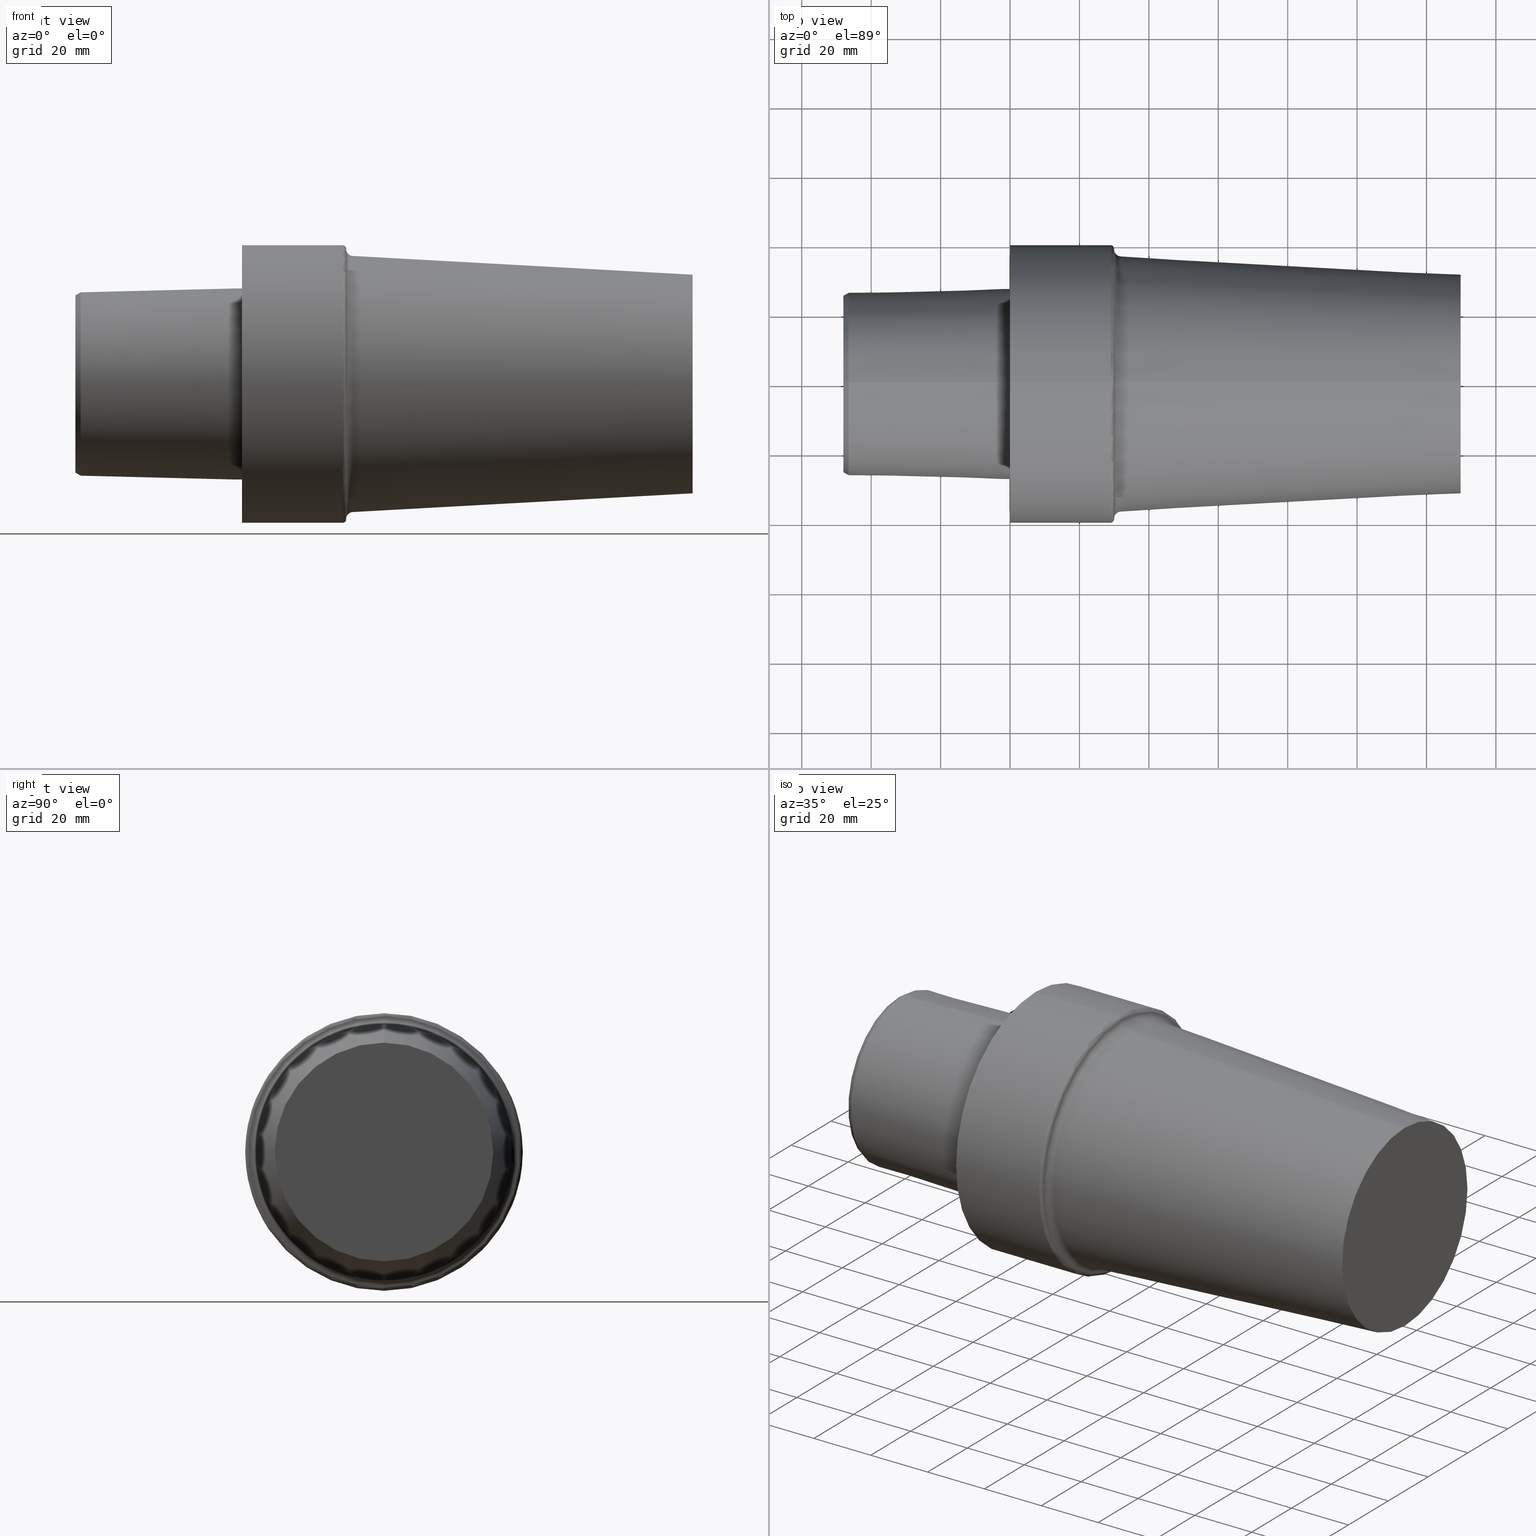
[diagram: canonical four-view strip — front | top / right | iso, engineering-drawing reading convention]
A machine part, canonical four-view strip (front | top / right | iso — engineering-drawing reading convention). The complete STEP part file that produces these views, byte-faithful:
ISO-10303-21;
HEADER;
FILE_DESCRIPTION (( 'STEP AP203' ),
    '1' );
FILE_NAME ('C8-F63-130.stp',
    '2022-03-11T15:36:04',
    ( '' ),
    ( '' ),
    'SwSTEP 2.0',
    'SolidWorks 2021',
    '' );
FILE_SCHEMA (( 'CONFIG_CONTROL_DESIGN' ));
ENDSEC;

DATA;
#1 = ORIENTED_EDGE ( 'NONE', *, *, #59, .F. ) ;
#2 = CARTESIAN_POINT ( 'NONE',  ( 31.88996590016365218, 0.000000000000000000, 0.000000000000000000 ) ) ;
#3 = ADVANCED_FACE ( 'NONE', ( #509 ), #198, .F. ) ;
#4 = ORIENTED_EDGE ( 'NONE', *, *, #321, .T. ) ;
#5 = ADVANCED_FACE ( 'NONE', ( #13 ), #469, .T. ) ;
#6 = CIRCLE ( 'NONE', #113, 0.9999999989799973621 ) ;
#7 = CARTESIAN_POINT ( 'NONE',  ( -46.49999994987858543, 0.000000000000000000, 0.000000000000000000 ) ) ;
#8 = VERTEX_POINT ( 'NONE', #512 ) ;
#9 = CIRCLE ( 'NONE', #496, 26.41260027772084129 ) ;
#10 = DIRECTION ( 'NONE',  ( -0.9984854159579920063, 0.000000000000000000, 0.05501703480918899991 ) ) ;
#11 = ORIENTED_EDGE ( 'NONE', *, *, #396, .T. ) ;
#12 = EDGE_CURVE ( 'NONE', #8, #216, #371, .T. ) ;
#13 = FACE_OUTER_BOUND ( 'NONE', #133, .T. ) ;
#14 = CIRCLE ( 'NONE', #319, 36.89586191702791496 ) ;
#15 = CARTESIAN_POINT ( 'NONE',  ( -46.49999994987858543, 0.000000000000000000, -26.41260027772084129 ) ) ;
#16 = APPROVAL ( #538, 'UNSPECIFIED' ) ;
#17 = ORIENTED_EDGE ( 'NONE', *, *, #504, .F. ) ;
#18 = AXIS2_PLACEMENT_3D ( 'NONE', #446, #26, #482 ) ;
#19 = CARTESIAN_POINT ( 'NONE',  ( -47.99999995507708661, 0.000000000000000000, 0.000000000000000000 ) ) ;
#20 = DIRECTION ( 'NONE',  ( -1.000000000000000000, 0.000000000000000000, 0.000000000000000000 ) ) ;
#21 = AXIS2_PLACEMENT_3D ( 'NONE', #228, #99, #391 ) ;
#22 = DIRECTION ( 'NONE',  ( 0.000000000000000000, 0.000000000000000000, -1.000000000000000000 ) ) ;
#23 = LINE ( 'NONE', #285, #27 ) ;
#24 = CC_DESIGN_DATE_AND_TIME_ASSIGNMENT ( #170, #122, ( #413 ) ) ;
#25 = CARTESIAN_POINT ( 'NONE',  ( 28.99999997311141797, 4.897668707065322260E-15, -39.99249996386929951 ) ) ;
#26 = DIRECTION ( 'NONE',  ( -1.000000000000000000, 0.000000000000000000, 0.000000000000000000 ) ) ;
#27 = VECTOR ( 'NONE', #201, 1000.000000000000000 ) ;
#28 = TOROIDAL_SURFACE ( 'NONE', #58, 38.99249996488934045, 0.9999999989799999156 ) ;
#29 = ADVANCED_FACE ( 'NONE', ( #271 ), #316, .F. ) ;
#30 = DIRECTION ( 'NONE',  ( -1.000000000000000000, 0.000000000000000000, 0.000000000000000000 ) ) ;
#31 = FACE_OUTER_BOUND ( 'NONE', #505, .T. ) ;
#32 = ORIENTED_EDGE ( 'NONE', *, *, #377, .T. ) ;
#33 = CARTESIAN_POINT ( 'NONE',  ( 129.8176255202773746, 0.000000000000000000, 0.000000000000000000 ) ) ;
#34 = DIRECTION ( 'NONE',  ( 0.000000000000000000, 1.000000000000000000, 0.000000000000000000 ) ) ;
#35 = SHAPE_DEFINITION_REPRESENTATION ( #266, #115 ) ;
#36 = DIRECTION ( 'NONE',  ( -1.000000000000000000, 0.000000000000000000, 0.000000000000000000 ) ) ;
#37 = EDGE_CURVE ( 'NONE', #297, #265, #260, .T. ) ;
#38 = COORDINATED_UNIVERSAL_TIME_OFFSET ( 6, 0, .BEHIND. ) ;
#39 = FACE_OUTER_BOUND ( 'NONE', #176, .T. ) ;
#40 = ORIENTED_EDGE ( 'NONE', *, *, #185, .T. ) ;
#41 = PERSON_AND_ORGANIZATION ( #459, #428 ) ;
#42 = FACE_OUTER_BOUND ( 'NONE', #382, .T. ) ;
#43 = ORIENTED_EDGE ( 'NONE', *, *, #12, .T. ) ;
#44 = APPROVAL_ROLE ( '' ) ;
#45 = VERTEX_POINT ( 'NONE', #443 ) ;
#46 = CONICAL_SURFACE ( 'NONE', #181, 26.41260027772084129, 0.5235987755982992597 ) ;
#47 = PERSON_AND_ORGANIZATION_ROLE ( 'creator' ) ;
#48 = CIRCLE ( 'NONE', #18, 38.89283274499099718 ) ;
#49 = DIRECTION ( 'NONE',  ( -1.000000000000000000, 0.000000000000000000, 0.000000000000000000 ) ) ;
#50 = ORIENTED_EDGE ( 'NONE', *, *, #98, .T. ) ;
#51 = EDGE_CURVE ( 'NONE', #159, #374, #318, .T. ) ;
#52 = ADVANCED_FACE ( 'NONE', ( #478 ), #118, .T. ) ;
#53 = EDGE_LOOP ( 'NONE', ( #365, #416, #497, #102 ) ) ;
#54 = CARTESIAN_POINT ( 'NONE',  ( 29.99999997209141611, 4.836436367170416693E-15, -38.99249996488934045 ) ) ;
#55 = ORIENTED_EDGE ( 'NONE', *, *, #377, .F. ) ;
#56 = AXIS2_PLACEMENT_3D ( 'NONE', #207, #330, #525 ) ;
#57 = ORIENTED_EDGE ( 'NONE', *, *, #123, .F. ) ;
#58 = AXIS2_PLACEMENT_3D ( 'NONE', #352, #209, #357 ) ;
#59 = EDGE_CURVE ( 'NONE', #265, #297, #510, .T. ) ;
#60 = ORIENTED_EDGE ( 'NONE', *, *, #476, .T. ) ;
#61 = ADVANCED_FACE ( 'NONE', ( #280 ), #74, .T. ) ;
#62 = DIRECTION ( 'NONE',  ( 1.000000000000000000, 0.000000000000000000, 0.000000000000000000 ) ) ;
#63 = DIRECTION ( 'NONE',  ( 0.000000000000000000, 0.000000000000000000, 1.000000000000000000 ) ) ;
#64 = AXIS2_PLACEMENT_3D ( 'NONE', #501, #85, #367 ) ;
#65 = DIRECTION ( 'NONE',  ( -1.000000000000000000, 0.000000000000000000, 0.000000000000000000 ) ) ;
#66 = EDGE_CURVE ( 'NONE', #263, #8, #23, .T. ) ;
#67 = DIRECTION ( 'NONE',  ( 0.000000000000000000, 0.000000000000000000, 1.000000000000000000 ) ) ;
#68 = SECURITY_CLASSIFICATION ( '', '', #290 ) ;
#69 = DIRECTION ( 'NONE',  ( -1.000000000000000000, 0.000000000000000000, 0.000000000000000000 ) ) ;
#70 = DIRECTION ( 'NONE',  ( -1.000000000000000000, 0.000000000000000000, 0.000000000000000000 ) ) ;
#71 = DIRECTION ( 'NONE',  ( 0.000000000000000000, 0.000000000000000000, 1.000000000000000000 ) ) ;
#72 = LOCAL_TIME ( 9, 36, 4.000000000000000000, #255 ) ;
#73 =( LENGTH_UNIT ( ) NAMED_UNIT ( * ) SI_UNIT ( .MILLI., .METRE. ) );
#74 = CYLINDRICAL_SURFACE ( 'NONE', #296, 39.99249996386929951 ) ;
#75 = ORIENTED_EDGE ( 'NONE', *, *, #461, .F. ) ;
#76 = PERSON_AND_ORGANIZATION ( #459, #428 ) ;
#77 = ADVANCED_FACE ( 'NONE', ( #196, #517 ), #114, .F. ) ;
#78 = DIRECTION ( 'NONE',  ( -1.000000000000000000, 0.000000000000000000, 0.000000000000000000 ) ) ;
#79 = DIRECTION ( 'NONE',  ( 1.000000000000000000, 0.000000000000000000, 0.000000000000000000 ) ) ;
#80 = VECTOR ( 'NONE', #144, 1000.000000000000000 ) ;
#81 = ORIENTED_EDGE ( 'NONE', *, *, #91, .T. ) ;
#82 = CONICAL_SURFACE ( 'NONE', #162, 27.52650806658465399, 0.02499311489546479637 ) ;
#83 = PERSON_AND_ORGANIZATION ( #459, #428 ) ;
#84 = CIRCLE ( 'NONE', #323, 25.54657487093501445 ) ;
#85 = DIRECTION ( 'NONE',  ( 0.000000000000000000, 1.000000000000000000, 1.224646799147353947E-16 ) ) ;
#86 = ORIENTED_EDGE ( 'NONE', *, *, #213, .F. ) ;
#87 = PERSON_AND_ORGANIZATION ( #459, #428 ) ;
#88 = ORIENTED_EDGE ( 'NONE', *, *, #199, .T. ) ;
#89 = CALENDAR_DATE ( 2022, 11, 3 ) ;
#90 = ORIENTED_EDGE ( 'NONE', *, *, #395, .F. ) ;
#91 = EDGE_CURVE ( 'NONE', #281, #169, #151, .T. ) ;
#92 = CIRCLE ( 'NONE', #64, 0.9999999989799973621 ) ;
#93 = ORIENTED_EDGE ( 'NONE', *, *, #59, .T. ) ;
#94 = DIRECTION ( 'NONE',  ( -1.000000000000000000, 0.000000000000000000, 0.000000000000000000 ) ) ;
#95 = ORIENTED_EDGE ( 'NONE', *, *, #261, .T. ) ;
#96 = AXIS2_PLACEMENT_3D ( 'NONE', #189, #425, #194 ) ;
#97 = FACE_OUTER_BOUND ( 'NONE', #455, .T. ) ;
#98 = EDGE_CURVE ( 'NONE', #159, #222, #284, .T. ) ;
#99 = DIRECTION ( 'NONE',  ( -1.000000000000000000, 0.000000000000000000, 0.000000000000000000 ) ) ;
#100 = EDGE_CURVE ( 'NONE', #378, #412, #452, .T. ) ;
#101 = CARTESIAN_POINT ( 'NONE',  ( 2.691416640612785863E-09, 0.000000000000000000, 0.000000000000000000 ) ) ;
#102 = ORIENTED_EDGE ( 'NONE', *, *, #504, .T. ) ;
#103 = DIRECTION ( 'NONE',  ( 0.000000000000000000, 0.000000000000000000, 1.000000000000000000 ) ) ;
#104 = ADVANCED_FACE ( 'NONE', ( #240, #31 ), #117, .F. ) ;
#105 = DIRECTION ( 'NONE',  ( 0.000000000000000000, 0.000000000000000000, 1.000000000000000000 ) ) ;
#106 = AXIS2_PLACEMENT_3D ( 'NONE', #481, #202, #63 ) ;
#107 = DIRECTION ( 'NONE',  ( 0.000000000000000000, 0.000000000000000000, 1.000000000000000000 ) ) ;
#108 = DIRECTION ( 'NONE',  ( 0.000000000000000000, 0.000000000000000000, 1.000000000000000000 ) ) ;
#109 = FACE_OUTER_BOUND ( 'NONE', #333, .T. ) ;
#110 = DIRECTION ( 'NONE',  ( 0.8660254037844387076, 0.000000000000000000, -0.4999999999999998890 ) ) ;
#111 = ORIENTED_EDGE ( 'NONE', *, *, #136, .T. ) ;
#112 = FACE_OUTER_BOUND ( 'NONE', #286, .T. ) ;
#113 = AXIS2_PLACEMENT_3D ( 'NONE', #343, #188, #511 ) ;
#114 = PLANE ( 'NONE',  #225 ) ;
#115 = ADVANCED_BREP_SHAPE_REPRESENTATION ( 'C8-F63-130', ( #450, #298 ), #313 ) ;
#116 = LOCAL_TIME ( 9, 36, 4.000000000000000000, #38 ) ;
#117 = PLANE ( 'NONE',  #172 ) ;
#118 = CONICAL_SURFACE ( 'NONE', #467, 31.49999997253168615, 0.05504482762205797908 ) ;
#119 = PERSON_AND_ORGANIZATION_ROLE ( 'design_owner' ) ;
#120 = DIRECTION ( 'NONE',  ( -1.000000000000000000, 0.000000000000000000, 0.000000000000000000 ) ) ;
#121 = EDGE_LOOP ( 'NONE', ( #475, #494, #32, #1 ) ) ;
#122 = DATE_TIME_ROLE ( 'creation_date' ) ;
#123 = EDGE_CURVE ( 'NONE', #222, #346, #161, .T. ) ;
#124 = ORIENTED_EDGE ( 'NONE', *, *, #51, .T. ) ;
#125 = CIRCLE ( 'NONE', #441, 26.41260027772084129 ) ;
#126 = APPROVAL_ROLE ( '' ) ;
#127 = CIRCLE ( 'NONE', #226, 38.89283274499099718 ) ;
#128 = CARTESIAN_POINT ( 'NONE',  ( 31.88996590016365218, 0.000000000000000000, 36.89586191702791496 ) ) ;
#129 = ORIENTED_EDGE ( 'NONE', *, *, #37, .F. ) ;
#130 = CARTESIAN_POINT ( 'NONE',  ( -1.940694415329066391, 0.000000000000000000, 27.52650806658465399 ) ) ;
#131 = EDGE_LOOP ( 'NONE', ( #340, #81, #139, #444 ) ) ;
#132 = DIRECTION ( 'NONE',  ( 0.000000000000000000, 0.000000000000000000, -1.000000000000000000 ) ) ;
#133 = EDGE_LOOP ( 'NONE', ( #221, #223, #336, #419 ) ) ;
#134 = CIRCLE ( 'NONE', #246, 36.89586191702791496 ) ;
#135 = VERTEX_POINT ( 'NONE', #400 ) ;
#136 = EDGE_CURVE ( 'NONE', #302, #281, #48, .T. ) ;
#137 = PRODUCT ( 'C8-F63-130', 'C8-F63-130', '', ( #368 ) ) ;
#138 = CARTESIAN_POINT ( 'NONE',  ( -47.99999995507708661, 0.000000000000000000, 39.99249996386929951 ) ) ;
#139 = ORIENTED_EDGE ( 'NONE', *, *, #372, .T. ) ;
#140 = AXIS2_PLACEMENT_3D ( 'NONE', #410, #215, #369 ) ;
#141 = AXIS2_PLACEMENT_3D ( 'NONE', #210, #327, #152 ) ;
#142 = DIRECTION ( 'NONE',  ( -1.000000000000000000, 0.000000000000000000, 0.000000000000000000 ) ) ;
#143 = CARTESIAN_POINT ( 'NONE',  ( -1.940694415329066391, 0.000000000000000000, 0.000000000000000000 ) ) ;
#144 = DIRECTION ( 'NONE',  ( -1.000000000000000000, 0.000000000000000000, 0.000000000000000000 ) ) ;
#145 = EDGE_LOOP ( 'NONE', ( #229, #205, #60, #306 ) ) ;
#146 = LOCAL_TIME ( 9, 36, 4.000000000000000000, #493 ) ;
#147 = CYLINDRICAL_SURFACE ( 'NONE', #153, 27.52650806658465399 ) ;
#148 = CARTESIAN_POINT ( 'NONE',  ( 2.691416640612785863E-09, 0.000000000000000000, 0.000000000000000000 ) ) ;
#149 = AXIS2_PLACEMENT_3D ( 'NONE', #236, #70, #103 ) ;
#150 = DIRECTION ( 'NONE',  ( -1.000000000000000000, 0.000000000000000000, 0.000000000000000000 ) ) ;
#151 = CIRCLE ( 'NONE', #56, 1.999999997960001608 ) ;
#152 = DIRECTION ( 'NONE',  ( 0.000000000000000000, 0.000000000000000000, 1.000000000000000000 ) ) ;
#153 = AXIS2_PLACEMENT_3D ( 'NONE', #154, #150, #200 ) ;
#154 = CARTESIAN_POINT ( 'NONE',  ( -47.99999995507708661, 0.000000000000000000, 0.000000000000000000 ) ) ;
#155 = DIRECTION ( 'NONE',  ( 1.000000000000000000, 0.000000000000000000, 0.000000000000000000 ) ) ;
#156 = DIRECTION ( 'NONE',  ( -1.000000000000000000, 0.000000000000000000, 0.000000000000000000 ) ) ;
#157 = CARTESIAN_POINT ( 'NONE',  ( 31.99999997005141594, 0.000000000000000000, 0.000000000000000000 ) ) ;
#158 = EDGE_CURVE ( 'NONE', #430, #265, #204, .T. ) ;
#159 = VERTEX_POINT ( 'NONE', #438 ) ;
#160 = CARTESIAN_POINT ( 'NONE',  ( 29.99999997209141611, 0.000000000000000000, 38.99249996488934045 ) ) ;
#161 = LINE ( 'NONE', #325, #257 ) ;
#162 = AXIS2_PLACEMENT_3D ( 'NONE', #244, #534, #132 ) ;
#163 = DIRECTION ( 'NONE',  ( -1.000000000000000000, 0.000000000000000000, 0.000000000000000000 ) ) ;
#164 = ORIENTED_EDGE ( 'NONE', *, *, #100, .T. ) ;
#165 = ADVANCED_FACE ( 'NONE', ( #354 ), #471, .F. ) ;
#166 = AXIS2_PLACEMENT_3D ( 'NONE', #148, #435, #71 ) ;
#167 = APPROVAL_ROLE ( '' ) ;
#168 = DIRECTION ( 'NONE',  ( 0.000000000000000000, 0.000000000000000000, -1.000000000000000000 ) ) ;
#169 = VERTEX_POINT ( 'NONE', #288 ) ;
#170 = DATE_AND_TIME ( #334, #379 ) ;
#171 = EDGE_LOOP ( 'NONE', ( #460, #305 ) ) ;
#172 = AXIS2_PLACEMENT_3D ( 'NONE', #437, #69, #366 ) ;
#173 = PERSON_AND_ORGANIZATION ( #459, #428 ) ;
#174 = ADVANCED_FACE ( 'NONE', ( #292 ), #348, .T. ) ;
#175 = CARTESIAN_POINT ( 'NONE',  ( -1.940694415329066391, 0.000000000000000000, 0.000000000000000000 ) ) ;
#176 = EDGE_LOOP ( 'NONE', ( #269, #88, #86, #218 ) ) ;
#177 = DIRECTION ( 'NONE',  ( 0.000000000000000000, 0.000000000000000000, 1.000000000000000000 ) ) ;
#178 = EDGE_LOOP ( 'NONE', ( #384, #259 ) ) ;
#179 = EDGE_CURVE ( 'NONE', #412, #378, #418, .T. ) ;
#180 = DIRECTION ( 'NONE',  ( 0.000000000000000000, 0.000000000000000000, 1.000000000000000000 ) ) ;
#181 = AXIS2_PLACEMENT_3D ( 'NONE', #7, #62, #389 ) ;
#182 = CARTESIAN_POINT ( 'NONE',  ( -46.49999994987858543, 3.302817819135798828E-15, 26.41260027772084129 ) ) ;
#183 = VECTOR ( 'NONE', #479, 1000.000000000000114 ) ;
#184 = ORIENTED_EDGE ( 'NONE', *, *, #396, .F. ) ;
#185 = EDGE_CURVE ( 'NONE', #374, #346, #125, .T. ) ;
#186 = CARTESIAN_POINT ( 'NONE',  ( -47.99999995507708661, 0.000000000000000000, 0.000000000000000000 ) ) ;
#187 = ADVANCED_FACE ( 'NONE', ( #42 ), #82, .T. ) ;
#188 = DIRECTION ( 'NONE',  ( 0.000000000000000000, -1.000000000000000000, 0.000000000000000000 ) ) ;
#189 = CARTESIAN_POINT ( 'NONE',  ( -47.99999995507708661, 0.000000000000000000, 0.000000000000000000 ) ) ;
#190 = VECTOR ( 'NONE', #10, 1000.000000000000227 ) ;
#191 = AXIS2_PLACEMENT_3D ( 'NONE', #295, #36, #341 ) ;
#192 = CARTESIAN_POINT ( 'NONE',  ( 29.99999997209141611, 0.000000000000000000, 38.89283274593847750 ) ) ;
#193 = ADVANCED_FACE ( 'NONE', ( #489 ), #230, .T. ) ;
#194 = DIRECTION ( 'NONE',  ( 0.000000000000000000, 0.000000000000000000, 1.000000000000000000 ) ) ;
#195 = DIRECTION ( 'NONE',  ( -1.000000000000000000, 0.000000000000000000, 0.000000000000000000 ) ) ;
#196 = FACE_BOUND ( 'NONE', #178, .T. ) ;
#197 = DESIGN_CONTEXT ( 'detailed design', #242, 'design' ) ;
#198 = TOROIDAL_SURFACE ( 'NONE', #21, 38.89283274688592229, 1.999999997959999831 ) ;
#199 = EDGE_CURVE ( 'NONE', #378, #430, #92, .T. ) ;
#200 = DIRECTION ( 'NONE',  ( 0.000000000000000000, 0.000000000000000000, 1.000000000000000000 ) ) ;
#201 = DIRECTION ( 'NONE',  ( -1.000000000000000000, 0.000000000000000000, 0.000000000000000000 ) ) ;
#202 = DIRECTION ( 'NONE',  ( -1.000000000000000000, 0.000000000000000000, 0.000000000000000000 ) ) ;
#203 = AXIS2_PLACEMENT_3D ( 'NONE', #175, #527, #168 ) ;
#204 = LINE ( 'NONE', #361, #329 ) ;
#205 = ORIENTED_EDGE ( 'NONE', *, *, #136, .F. ) ;
#206 = DIRECTION ( 'NONE',  ( 0.000000000000000000, 1.000000000000000000, 0.000000000000000000 ) ) ;
#207 = CARTESIAN_POINT ( 'NONE',  ( 31.99999997005141594, 4.762998313324717194E-15, -38.89283274688592229 ) ) ;
#208 = ORIENTED_EDGE ( 'NONE', *, *, #213, .T. ) ;
#209 = DIRECTION ( 'NONE',  ( -1.000000000000000000, 0.000000000000000000, 0.000000000000000000 ) ) ;
#210 = CARTESIAN_POINT ( 'NONE',  ( -47.99999995507708661, 0.000000000000000000, 0.000000000000000000 ) ) ;
#211 = AXIS2_PLACEMENT_3D ( 'NONE', #250, #163, #332 ) ;
#212 = CARTESIAN_POINT ( 'NONE',  ( -46.49999994987858543, 0.000000000000000000, 0.000000000000000000 ) ) ;
#213 = EDGE_CURVE ( 'NONE', #392, #430, #388, .T. ) ;
#214 = PERSON_AND_ORGANIZATION ( #459, #428 ) ;
#215 = DIRECTION ( 'NONE',  ( -1.000000000000000000, 0.000000000000000000, 0.000000000000000000 ) ) ;
#216 = VERTEX_POINT ( 'NONE', #130 ) ;
#217 = DIRECTION ( 'NONE',  ( 0.000000000000000000, 0.000000000000000000, -1.000000000000000000 ) ) ;
#218 = ORIENTED_EDGE ( 'NONE', *, *, #321, .F. ) ;
#219 = PERSON_AND_ORGANIZATION_ROLE ( 'design_supplier' ) ;
#220 = CARTESIAN_POINT ( 'NONE',  ( 129.8176255202773746, 0.000000000000000000, 0.000000000000000000 ) ) ;
#221 = ORIENTED_EDGE ( 'NONE', *, *, #66, .F. ) ;
#222 = VERTEX_POINT ( 'NONE', #304 ) ;
#223 = ORIENTED_EDGE ( 'NONE', *, *, #277, .T. ) ;
#224 = APPROVAL ( #287, 'UNSPECIFIED' ) ;
#225 = AXIS2_PLACEMENT_3D ( 'NONE', #405, #155, #34 ) ;
#226 = AXIS2_PLACEMENT_3D ( 'NONE', #317, #195, #239 ) ;
#227 = VERTEX_POINT ( 'NONE', #128 ) ;
#228 = CARTESIAN_POINT ( 'NONE',  ( 31.99999997005141594, 0.000000000000000000, 0.000000000000000000 ) ) ;
#229 = ORIENTED_EDGE ( 'NONE', *, *, #91, .F. ) ;
#230 = CONICAL_SURFACE ( 'NONE', #526, 26.41260027772084129, 0.5235987755982992597 ) ;
#231 = FACE_OUTER_BOUND ( 'NONE', #387, .T. ) ;
#232 = ADVANCED_FACE ( 'NONE', ( #39 ), #463, .T. ) ;
#233 = ORIENTED_EDGE ( 'NONE', *, *, #356, .F. ) ;
#234 = DIRECTION ( 'NONE',  ( 0.8660254037844387076, 6.123233995736768501E-17, 0.4999999999999998890 ) ) ;
#235 = EDGE_CURVE ( 'NONE', #312, #135, #503, .T. ) ;
#236 = CARTESIAN_POINT ( 'NONE',  ( 28.99999997311141797, 0.000000000000000000, 0.000000000000000000 ) ) ;
#237 = DIRECTION ( 'NONE',  ( 0.000000000000000000, 0.000000000000000000, 1.000000000000000000 ) ) ;
#238 = AXIS2_PLACEMENT_3D ( 'NONE', #220, #120, #301 ) ;
#239 = DIRECTION ( 'NONE',  ( 0.000000000000000000, 0.000000000000000000, 1.000000000000000000 ) ) ;
#240 = FACE_BOUND ( 'NONE', #309, .T. ) ;
#241 = CARTESIAN_POINT ( 'NONE',  ( 2.691416640612785863E-09, 0.000000000000000000, 0.000000000000000000 ) ) ;
#242 = APPLICATION_CONTEXT ( 'configuration controlled 3d designs of mechanical parts and assemblies' ) ;
#243 = DATE_AND_TIME ( #486, #355 ) ;
#244 = CARTESIAN_POINT ( 'NONE',  ( -1.940694415329066391, 0.000000000000000000, 0.000000000000000000 ) ) ;
#245 = COORDINATED_UNIVERSAL_TIME_OFFSET ( 6, 0, .BEHIND. ) ;
#246 = AXIS2_PLACEMENT_3D ( 'NONE', #2, #270, #431 ) ;
#247 = LINE ( 'NONE', #381, #408 ) ;
#248 = ORIENTED_EDGE ( 'NONE', *, *, #488, .T. ) ;
#249 = COORDINATED_UNIVERSAL_TIME_OFFSET ( 6, 0, .BEHIND. ) ;
#250 = CARTESIAN_POINT ( 'NONE',  ( 28.99999997311141797, 0.000000000000000000, 0.000000000000000000 ) ) ;
#251 = EDGE_LOOP ( 'NONE', ( #414, #124, #40, #57 ) ) ;
#252 = APPLICATION_PROTOCOL_DEFINITION ( 'international standard', 'config_control_design', 1994, #242 ) ;
#253 = ORIENTED_EDGE ( 'NONE', *, *, #372, .F. ) ;
#254 = EDGE_CURVE ( 'NONE', #45, #216, #247, .T. ) ;
#255 = COORDINATED_UNIVERSAL_TIME_OFFSET ( 6, 0, .BEHIND. ) ;
#256 = ORIENTED_EDGE ( 'NONE', *, *, #461, .T. ) ;
#257 = VECTOR ( 'NONE', #110, 1000.000000000000000 ) ;
#258 = DIRECTION ( 'NONE',  ( 0.000000000000000000, 0.000000000000000000, 1.000000000000000000 ) ) ;
#259 = ORIENTED_EDGE ( 'NONE', *, *, #277, .F. ) ;
#260 = CIRCLE ( 'NONE', #166, 39.99249996386929951 ) ;
#261 = EDGE_CURVE ( 'NONE', #45, #263, #375, .T. ) ;
#262 = CC_DESIGN_APPROVAL ( #16, ( #68 ) ) ;
#263 = VERTEX_POINT ( 'NONE', #529 ) ;
#264 = FACE_OUTER_BOUND ( 'NONE', #53, .T. ) ;
#265 = VERTEX_POINT ( 'NONE', #335 ) ;
#266 = PRODUCT_DEFINITION_SHAPE ( 'NONE', 'NONE',  #413 ) ;
#267 = CARTESIAN_POINT ( 'NONE',  ( 31.88996590016365218, 0.000000000000000000, 0.000000000000000000 ) ) ;
#268 = AXIS2_PLACEMENT_3D ( 'NONE', #326, #474, #279 ) ;
#269 = ORIENTED_EDGE ( 'NONE', *, *, #179, .T. ) ;
#270 = DIRECTION ( 'NONE',  ( -1.000000000000000000, 0.000000000000000000, 0.000000000000000000 ) ) ;
#271 = FACE_OUTER_BOUND ( 'NONE', #171, .T. ) ;
#272 =( NAMED_UNIT ( * ) SI_UNIT ( $, .STERADIAN. ) SOLID_ANGLE_UNIT ( ) );
#273 = LINE ( 'NONE', #363, #344 ) ;
#274 = AXIS2_PLACEMENT_3D ( 'NONE', #393, #403, #22 ) ;
#275 = DIRECTION ( 'NONE',  ( 0.9996876883616916398, 0.000000000000000000, -0.02499051296106793996 ) ) ;
#276 = CARTESIAN_POINT ( 'NONE',  ( 29.99999997209141611, 0.000000000000000000, 0.000000000000000000 ) ) ;
#277 = EDGE_CURVE ( 'NONE', #263, #45, #439, .T. ) ;
#278 = ADVANCED_FACE ( 'NONE', ( #97 ), #424, .T. ) ;
#279 = DIRECTION ( 'NONE',  ( 0.000000000000000000, 0.000000000000000000, 1.000000000000000000 ) ) ;
#280 = FACE_OUTER_BOUND ( 'NONE', #121, .T. ) ;
#281 = VERTEX_POINT ( 'NONE', #385 ) ;
#282 = AXIS2_PLACEMENT_3D ( 'NONE', #373, #49, #447 ) ;
#283 = LINE ( 'NONE', #401, #183 ) ;
#284 = CIRCLE ( 'NONE', #141, 25.54657487093501445 ) ;
#285 = CARTESIAN_POINT ( 'NONE',  ( -47.99999995507708661, 3.371024999544667893E-15, -27.52650806658465399 ) ) ;
#286 = EDGE_LOOP ( 'NONE', ( #457, #164, #4, #90 ) ) ;
#287 = APPROVAL_STATUS ( 'not_yet_approved' ) ;
#288 = CARTESIAN_POINT ( 'NONE',  ( 31.88996590016365218, 4.518439919847096007E-15, -36.89586191702791496 ) ) ;
#289 = CC_DESIGN_SECURITY_CLASSIFICATION ( #68, ( #307 ) ) ;
#290 = SECURITY_CLASSIFICATION_LEVEL ( 'unclassified' ) ;
#291 = CC_DESIGN_DATE_AND_TIME_ASSIGNMENT ( #451, #417, ( #68 ) ) ;
#292 = FACE_OUTER_BOUND ( 'NONE', #342, .T. ) ;
#293 = EDGE_LOOP ( 'NONE', ( #345, #50 ) ) ;
#294 = CALENDAR_DATE ( 2022, 11, 3 ) ;
#295 = CARTESIAN_POINT ( 'NONE',  ( 29.99999997209141611, 0.000000000000000000, 0.000000000000000000 ) ) ;
#296 = AXIS2_PLACEMENT_3D ( 'NONE', #487, #398, #358 ) ;
#297 = VERTEX_POINT ( 'NONE', #383 ) ;
#298 = AXIS2_PLACEMENT_3D ( 'NONE', #339, #303, #337 ) ;
#299 = CIRCLE ( 'NONE', #362, 31.49999997253168615 ) ;
#300 = PERSON_AND_ORGANIZATION ( #459, #428 ) ;
#301 = DIRECTION ( 'NONE',  ( 0.000000000000000000, 0.000000000000000000, 1.000000000000000000 ) ) ;
#302 = VERTEX_POINT ( 'NONE', #192 ) ;
#303 = DIRECTION ( 'NONE',  ( 0.000000000000000000, 0.000000000000000000, 1.000000000000000000 ) ) ;
#304 = CARTESIAN_POINT ( 'NONE',  ( -47.99999995507708661, 0.000000000000000000, -25.54657487093501445 ) ) ;
#305 = ORIENTED_EDGE ( 'NONE', *, *, #532, .F. ) ;
#306 = ORIENTED_EDGE ( 'NONE', *, *, #310, .T. ) ;
#307 = PRODUCT_DEFINITION_FORMATION_WITH_SPECIFIED_SOURCE ( 'ANY', '', #137, .NOT_KNOWN. ) ;
#308 = ADVANCED_FACE ( 'NONE', ( #264 ), #46, .T. ) ;
#309 = EDGE_LOOP ( 'NONE', ( #111, #449 ) ) ;
#310 = EDGE_CURVE ( 'NONE', #227, #169, #134, .T. ) ;
#311 = AXIS2_PLACEMENT_3D ( 'NONE', #143, #314, #473 ) ;
#312 = VERTEX_POINT ( 'NONE', #470 ) ;
#313 =( GEOMETRIC_REPRESENTATION_CONTEXT ( 3 ) GLOBAL_UNCERTAINTY_ASSIGNED_CONTEXT ( ( #521 ) ) GLOBAL_UNIT_ASSIGNED_CONTEXT ( ( #73, #434, #272 ) ) REPRESENTATION_CONTEXT ( 'NONE', 'WORKASPACE' ) );
#314 = DIRECTION ( 'NONE',  ( -1.000000000000000000, 0.000000000000000000, 0.000000000000000000 ) ) ;
#315 = CC_DESIGN_PERSON_AND_ORGANIZATION_ASSIGNMENT ( #528, #119, ( #137 ) ) ;
#316 = PLANE ( 'NONE',  #353 ) ;
#317 = CARTESIAN_POINT ( 'NONE',  ( 29.99999997209141611, 0.000000000000000000, 0.000000000000000000 ) ) ;
#318 = LINE ( 'NONE', #480, #436 ) ;
#319 = AXIS2_PLACEMENT_3D ( 'NONE', #267, #94, #180 ) ;
#320 = FACE_OUTER_BOUND ( 'NONE', #293, .T. ) ;
#321 = EDGE_CURVE ( 'NONE', #412, #392, #6, .T. ) ;
#322 = DIRECTION ( 'NONE',  ( -1.000000000000000000, 0.000000000000000000, 0.000000000000000000 ) ) ;
#323 = AXIS2_PLACEMENT_3D ( 'NONE', #19, #156, #107 ) ;
#324 = CARTESIAN_POINT ( 'NONE',  ( 129.8176255202773746, 3.857637413950260996E-15, -31.49999997253168615 ) ) ;
#325 = CARTESIAN_POINT ( 'NONE',  ( -46.49999994987858543, 0.000000000000000000, -26.41260027772084129 ) ) ;
#326 = CARTESIAN_POINT ( 'NONE',  ( 129.8176255202773746, 0.000000000000000000, 0.000000000000000000 ) ) ;
#327 = DIRECTION ( 'NONE',  ( -1.000000000000000000, 0.000000000000000000, 0.000000000000000000 ) ) ;
#328 = ORIENTED_EDGE ( 'NONE', *, *, #235, .T. ) ;
#329 = VECTOR ( 'NONE', #364, 1000.000000000000000 ) ;
#330 = DIRECTION ( 'NONE',  ( 0.000000000000000000, 1.000000000000000000, 1.224646799147355919E-16 ) ) ;
#331 = APPROVAL_PERSON_ORGANIZATION ( #41, #224, #126 ) ;
#332 = DIRECTION ( 'NONE',  ( 0.000000000000000000, 0.000000000000000000, 1.000000000000000000 ) ) ;
#333 = EDGE_LOOP ( 'NONE', ( #328, #248, #423, #233 ) ) ;
#334 = CALENDAR_DATE ( 2022, 11, 3 ) ;
#335 = CARTESIAN_POINT ( 'NONE',  ( 2.691416640612785863E-09, 4.897668707065322260E-15, -39.99249996386929951 ) ) ;
#336 = ORIENTED_EDGE ( 'NONE', *, *, #254, .T. ) ;
#337 = DIRECTION ( 'NONE',  ( 1.000000000000000000, 0.000000000000000000, 0.000000000000000000 ) ) ;
#338 = ORIENTED_EDGE ( 'NONE', *, *, #254, .F. ) ;
#339 = CARTESIAN_POINT ( 'NONE',  ( 0.000000000000000000, 0.000000000000000000, 0.000000000000000000 ) ) ;
#340 = ORIENTED_EDGE ( 'NONE', *, *, #515, .F. ) ;
#341 = DIRECTION ( 'NONE',  ( 0.000000000000000000, 0.000000000000000000, 1.000000000000000000 ) ) ;
#342 = EDGE_LOOP ( 'NONE', ( #75, #17, #531, #43 ) ) ;
#343 = CARTESIAN_POINT ( 'NONE',  ( 28.99999997311141797, 0.000000000000000000, 38.99249996488934045 ) ) ;
#344 = VECTOR ( 'NONE', #275, 1000.000000000000114 ) ;
#345 = ORIENTED_EDGE ( 'NONE', *, *, #507, .T. ) ;
#346 = VERTEX_POINT ( 'NONE', #15 ) ;
#347 = AXIS2_PLACEMENT_3D ( 'NONE', #186, #472, #258 ) ;
#348 = CONICAL_SURFACE ( 'NONE', #203, 27.52650806658465399, 0.02499311489546479637 ) ;
#349 = CC_DESIGN_APPROVAL ( #224, ( #413 ) ) ;
#350 = DIRECTION ( 'NONE',  ( 0.000000000000000000, 0.000000000000000000, 1.000000000000000000 ) ) ;
#351 = CARTESIAN_POINT ( 'NONE',  ( 129.8176255202773746, 0.000000000000000000, 0.000000000000000000 ) ) ;
#352 = CARTESIAN_POINT ( 'NONE',  ( 28.99999997311141797, 0.000000000000000000, 0.000000000000000000 ) ) ;
#353 = AXIS2_PLACEMENT_3D ( 'NONE', #351, #322, #237 ) ;
#354 = FACE_OUTER_BOUND ( 'NONE', #145, .T. ) ;
#355 = LOCAL_TIME ( 9, 36, 4.000000000000000000, #249 ) ;
#356 = EDGE_CURVE ( 'NONE', #312, #227, #465, .T. ) ;
#357 = DIRECTION ( 'NONE',  ( 0.000000000000000000, 0.000000000000000000, 1.000000000000000000 ) ) ;
#358 = DIRECTION ( 'NONE',  ( 0.000000000000000000, 0.000000000000000000, 1.000000000000000000 ) ) ;
#359 = AXIS2_PLACEMENT_3D ( 'NONE', #276, #20, #524 ) ;
#360 = DIRECTION ( 'NONE',  ( 1.000000000000000000, 0.000000000000000000, 0.000000000000000000 ) ) ;
#361 = CARTESIAN_POINT ( 'NONE',  ( -47.99999995507708661, 4.897668707065322260E-15, -39.99249996386929951 ) ) ;
#362 = AXIS2_PLACEMENT_3D ( 'NONE', #33, #523, #483 ) ;
#363 = CARTESIAN_POINT ( 'NONE',  ( -1.940694415329066391, 0.000000000000000000, -27.52650806658465399 ) ) ;
#364 = DIRECTION ( 'NONE',  ( -1.000000000000000000, 0.000000000000000000, 0.000000000000000000 ) ) ;
#365 = ORIENTED_EDGE ( 'NONE', *, *, #51, .F. ) ;
#366 = DIRECTION ( 'NONE',  ( 0.000000000000000000, 0.000000000000000000, 1.000000000000000000 ) ) ;
#367 = DIRECTION ( 'NONE',  ( 0.000000000000000000, -1.224646799147358384E-16, 1.000000000000000000 ) ) ;
#368 = MECHANICAL_CONTEXT ( 'NONE', #407, 'mechanical' ) ;
#369 = DIRECTION ( 'NONE',  ( 0.000000000000000000, 0.000000000000000000, 1.000000000000000000 ) ) ;
#370 = ORIENTED_EDGE ( 'NONE', *, *, #185, .F. ) ;
#371 = CIRCLE ( 'NONE', #311, 27.52650806658465399 ) ;
#372 = EDGE_CURVE ( 'NONE', #169, #227, #14, .T. ) ;
#373 = CARTESIAN_POINT ( 'NONE',  ( 28.99999997311141797, 0.000000000000000000, 0.000000000000000000 ) ) ;
#374 = VERTEX_POINT ( 'NONE', #182 ) ;
#375 = CIRCLE ( 'NONE', #140, 27.52650806658465399 ) ;
#376 = APPLICATION_PROTOCOL_DEFINITION ( 'international standard', 'config_control_design', 1994, #407 ) ;
#377 = EDGE_CURVE ( 'NONE', #392, #297, #422, .T. ) ;
#378 = VERTEX_POINT ( 'NONE', #54 ) ;
#379 = LOCAL_TIME ( 9, 36, 4.000000000000000000, #245 ) ;
#380 = PERSON_AND_ORGANIZATION_ROLE ( 'classification_officer' ) ;
#381 = CARTESIAN_POINT ( 'NONE',  ( -47.99999995507708661, 0.000000000000000000, 27.52650806658465399 ) ) ;
#382 = EDGE_LOOP ( 'NONE', ( #370, #256, #11, #440 ) ) ;
#383 = CARTESIAN_POINT ( 'NONE',  ( 2.691416640612785863E-09, 0.000000000000000000, 39.99249996386929951 ) ) ;
#384 = ORIENTED_EDGE ( 'NONE', *, *, #261, .F. ) ;
#385 = CARTESIAN_POINT ( 'NONE',  ( 29.99999997209141611, 4.762998313208685221E-15, -38.89283274593847750 ) ) ;
#386 = CIRCLE ( 'NONE', #149, 39.99249996386929951 ) ;
#387 = EDGE_LOOP ( 'NONE', ( #95, #466, #184, #338 ) ) ;
#388 = CIRCLE ( 'NONE', #211, 39.99249996386929951 ) ;
#389 = DIRECTION ( 'NONE',  ( 0.000000000000000000, 0.000000000000000000, -1.000000000000000000 ) ) ;
#390 = CC_DESIGN_PERSON_AND_ORGANIZATION_ASSIGNMENT ( #76, #533, ( #413 ) ) ;
#391 = DIRECTION ( 'NONE',  ( 0.000000000000000000, 0.000000000000000000, 1.000000000000000000 ) ) ;
#392 = VERTEX_POINT ( 'NONE', #477 ) ;
#393 = CARTESIAN_POINT ( 'NONE',  ( 31.99999997005141594, 0.000000000000000000, 38.89283274688592229 ) ) ;
#394 = DIRECTION ( 'NONE',  ( 0.000000000000000000, 0.000000000000000000, 1.000000000000000000 ) ) ;
#395 = EDGE_CURVE ( 'NONE', #430, #392, #386, .T. ) ;
#396 = EDGE_CURVE ( 'NONE', #216, #8, #506, .T. ) ;
#397 = LINE ( 'NONE', #324, #454 ) ;
#398 = DIRECTION ( 'NONE',  ( -1.000000000000000000, 0.000000000000000000, 0.000000000000000000 ) ) ;
#399 = DIRECTION ( 'NONE',  ( -0.9984854159579920063, 6.737643557765180859E-18, -0.05501703480918899991 ) ) ;
#400 = CARTESIAN_POINT ( 'NONE',  ( 129.8176255202773746, 4.188038666898672585E-15, -31.49999997253168615 ) ) ;
#401 = CARTESIAN_POINT ( 'NONE',  ( -1.940694415329066391, 3.371024999544667893E-15, 27.52650806658465399 ) ) ;
#402 = CARTESIAN_POINT ( 'NONE',  ( 129.8176255202773746, 0.000000000000000000, 0.000000000000000000 ) ) ;
#403 = DIRECTION ( 'NONE',  ( 0.000000000000000000, -1.000000000000000000, 0.000000000000000000 ) ) ;
#404 = PRODUCT_RELATED_PRODUCT_CATEGORY ( 'detail', '', ( #137 ) ) ;
#405 = CARTESIAN_POINT ( 'NONE',  ( 2.691419645645579073E-09, 39.99249996386929951, 0.000000000000000000 ) ) ;
#406 = APPROVAL_DATE_TIME ( #243, #16 ) ;
#407 = APPLICATION_CONTEXT ( 'configuration controlled 3d designs of mechanical parts and assemblies' ) ;
#408 = VECTOR ( 'NONE', #539, 1000.000000000000000 ) ;
#409 = DATE_AND_TIME ( #89, #116 ) ;
#410 = CARTESIAN_POINT ( 'NONE',  ( 2.691416640612785863E-09, 0.000000000000000000, 0.000000000000000000 ) ) ;
#411 = CIRCLE ( 'NONE', #274, 1.999999997960001608 ) ;
#412 = VERTEX_POINT ( 'NONE', #160 ) ;
#413 = PRODUCT_DEFINITION ( 'UNKNOWN', '', #307, #197 ) ;
#414 = ORIENTED_EDGE ( 'NONE', *, *, #98, .F. ) ;
#415 = APPROVAL_DATE_TIME ( #445, #224 ) ;
#416 = ORIENTED_EDGE ( 'NONE', *, *, #507, .F. ) ;
#417 = DATE_TIME_ROLE ( 'classification_date' ) ;
#418 = CIRCLE ( 'NONE', #191, 38.99249996488934045 ) ;
#419 = ORIENTED_EDGE ( 'NONE', *, *, #12, .F. ) ;
#420 = CC_DESIGN_PERSON_AND_ORGANIZATION_ASSIGNMENT ( #214, #47, ( #307 ) ) ;
#421 = ORIENTED_EDGE ( 'NONE', *, *, #158, .T. ) ;
#422 = LINE ( 'NONE', #138, #80 ) ;
#423 = ORIENTED_EDGE ( 'NONE', *, *, #310, .F. ) ;
#424 = CYLINDRICAL_SURFACE ( 'NONE', #347, 39.99249996386929951 ) ;
#425 = DIRECTION ( 'NONE',  ( -1.000000000000000000, 0.000000000000000000, 0.000000000000000000 ) ) ;
#426 = AXIS2_PLACEMENT_3D ( 'NONE', #157, #78, #394 ) ;
#427 = ADVANCED_FACE ( 'NONE', ( #320 ), #516, .F. ) ;
#428 = ORGANIZATION ( 'UNSPECIFIED', 'UNSPECIFIED', '' ) ;
#429 = AXIS2_PLACEMENT_3D ( 'NONE', #432, #360, #206 ) ;
#430 = VERTEX_POINT ( 'NONE', #25 ) ;
#431 = DIRECTION ( 'NONE',  ( 0.000000000000000000, 0.000000000000000000, 1.000000000000000000 ) ) ;
#432 = CARTESIAN_POINT ( 'NONE',  ( -47.99999995507708661, 25.54657487093501445, 0.000000000000000000 ) ) ;
#433 = ORIENTED_EDGE ( 'NONE', *, *, #179, .F. ) ;
#434 =( NAMED_UNIT ( * ) PLANE_ANGLE_UNIT ( ) SI_UNIT ( $, .RADIAN. ) );
#435 = DIRECTION ( 'NONE',  ( -1.000000000000000000, 0.000000000000000000, 0.000000000000000000 ) ) ;
#436 = VECTOR ( 'NONE', #234, 1000.000000000000000 ) ;
#437 = CARTESIAN_POINT ( 'NONE',  ( 29.99999997209141611, 38.89283274499099718, 0.000000000000000000 ) ) ;
#438 = CARTESIAN_POINT ( 'NONE',  ( -47.99999995507708661, 3.181581876606904120E-15, 25.54657487093501445 ) ) ;
#439 = CIRCLE ( 'NONE', #485, 27.52650806658465399 ) ;
#440 = ORIENTED_EDGE ( 'NONE', *, *, #520, .F. ) ;
#441 = AXIS2_PLACEMENT_3D ( 'NONE', #212, #498, #177 ) ;
#442 = APPROVAL_PERSON_ORGANIZATION ( #83, #468, #167 ) ;
#443 = CARTESIAN_POINT ( 'NONE',  ( 2.691416640612785863E-09, 0.000000000000000000, 27.52650806658465399 ) ) ;
#444 = ORIENTED_EDGE ( 'NONE', *, *, #476, .F. ) ;
#445 = DATE_AND_TIME ( #458, #72 ) ;
#446 = CARTESIAN_POINT ( 'NONE',  ( 29.99999997209141611, 0.000000000000000000, 0.000000000000000000 ) ) ;
#447 = DIRECTION ( 'NONE',  ( 0.000000000000000000, 0.000000000000000000, 1.000000000000000000 ) ) ;
#448 = ADVANCED_FACE ( 'NONE', ( #231 ), #147, .T. ) ;
#449 = ORIENTED_EDGE ( 'NONE', *, *, #515, .T. ) ;
#450 = MANIFOLD_SOLID_BREP ( 'Scale1', #490 ) ;
#451 = DATE_AND_TIME ( #294, #146 ) ;
#452 = CIRCLE ( 'NONE', #359, 38.99249996488934045 ) ;
#453 = CARTESIAN_POINT ( 'NONE',  ( -46.49999994987858543, 0.000000000000000000, 0.000000000000000000 ) ) ;
#454 = VECTOR ( 'NONE', #399, 1000.000000000000227 ) ;
#455 = EDGE_LOOP ( 'NONE', ( #208, #421, #129, #55 ) ) ;
#456 = APPROVAL_DATE_TIME ( #409, #468 ) ;
#457 = ORIENTED_EDGE ( 'NONE', *, *, #199, .F. ) ;
#458 = CALENDAR_DATE ( 2022, 11, 3 ) ;
#459 = PERSON ( 'UNSPECIFIED', 'UNSPECIFIED', 'UNSPECIFIED', ('UNSPECIFIED'), ('UNSPECIFIED'), ('UNSPECIFIED') ) ;
#460 = ORIENTED_EDGE ( 'NONE', *, *, #235, .F. ) ;
#461 = EDGE_CURVE ( 'NONE', #374, #216, #283, .T. ) ;
#462 = CC_DESIGN_PERSON_AND_ORGANIZATION_ASSIGNMENT ( #300, #219, ( #307 ) ) ;
#463 = TOROIDAL_SURFACE ( 'NONE', #282, 38.99249996488934045, 0.9999999989799999156 ) ;
#464 = ORIENTED_EDGE ( 'NONE', *, *, #100, .F. ) ;
#465 = LINE ( 'NONE', #514, #190 ) ;
#466 = ORIENTED_EDGE ( 'NONE', *, *, #66, .T. ) ;
#467 = AXIS2_PLACEMENT_3D ( 'NONE', #402, #484, #105 ) ;
#468 = APPROVAL ( #495, 'UNSPECIFIED' ) ;
#469 = CYLINDRICAL_SURFACE ( 'NONE', #96, 27.52650806658465399 ) ;
#470 = CARTESIAN_POINT ( 'NONE',  ( 129.8176255202773746, 0.000000000000000000, 31.49999997253168615 ) ) ;
#471 = TOROIDAL_SURFACE ( 'NONE', #426, 38.89283274688592229, 1.999999997959999831 ) ;
#472 = DIRECTION ( 'NONE',  ( -1.000000000000000000, 0.000000000000000000, 0.000000000000000000 ) ) ;
#473 = DIRECTION ( 'NONE',  ( 0.000000000000000000, 0.000000000000000000, 1.000000000000000000 ) ) ;
#474 = DIRECTION ( 'NONE',  ( -1.000000000000000000, 0.000000000000000000, 0.000000000000000000 ) ) ;
#475 = ORIENTED_EDGE ( 'NONE', *, *, #158, .F. ) ;
#476 = EDGE_CURVE ( 'NONE', #302, #227, #411, .T. ) ;
#477 = CARTESIAN_POINT ( 'NONE',  ( 28.99999997311141797, 0.000000000000000000, 39.99249996386929951 ) ) ;
#478 = FACE_OUTER_BOUND ( 'NONE', #522, .T. ) ;
#479 = DIRECTION ( 'NONE',  ( 0.9996876883616916398, 3.060455170682228743E-18, 0.02499051296106793996 ) ) ;
#480 = CARTESIAN_POINT ( 'NONE',  ( -46.49999994987858543, 3.234610638726928974E-15, 26.41260027772084129 ) ) ;
#481 = CARTESIAN_POINT ( 'NONE',  ( -1.940694415329066391, 0.000000000000000000, 0.000000000000000000 ) ) ;
#482 = DIRECTION ( 'NONE',  ( 0.000000000000000000, 0.000000000000000000, 1.000000000000000000 ) ) ;
#483 = DIRECTION ( 'NONE',  ( 0.000000000000000000, 0.000000000000000000, 1.000000000000000000 ) ) ;
#484 = DIRECTION ( 'NONE',  ( -1.000000000000000000, 0.000000000000000000, 0.000000000000000000 ) ) ;
#485 = AXIS2_PLACEMENT_3D ( 'NONE', #101, #142, #350 ) ;
#486 = CALENDAR_DATE ( 2022, 11, 3 ) ;
#487 = CARTESIAN_POINT ( 'NONE',  ( -47.99999995507708661, 0.000000000000000000, 0.000000000000000000 ) ) ;
#488 = EDGE_CURVE ( 'NONE', #135, #169, #397, .T. ) ;
#489 = FACE_OUTER_BOUND ( 'NONE', #251, .T. ) ;
#490 = CLOSED_SHELL ( 'NONE', ( #427, #308, #174, #5, #77, #61, #537, #104, #165, #52, #29, #508, #3, #232, #278, #448, #187, #193 ) ) ;
#491 = ORIENTED_EDGE ( 'NONE', *, *, #356, .T. ) ;
#492 = APPROVAL_PERSON_ORGANIZATION ( #173, #16, #44 ) ;
#493 = COORDINATED_UNIVERSAL_TIME_OFFSET ( 6, 0, .BEHIND. ) ;
#494 = ORIENTED_EDGE ( 'NONE', *, *, #395, .T. ) ;
#495 = APPROVAL_STATUS ( 'not_yet_approved' ) ;
#496 = AXIS2_PLACEMENT_3D ( 'NONE', #519, #30, #67 ) ;
#497 = ORIENTED_EDGE ( 'NONE', *, *, #123, .T. ) ;
#498 = DIRECTION ( 'NONE',  ( -1.000000000000000000, 0.000000000000000000, 0.000000000000000000 ) ) ;
#499 = ORIENTED_EDGE ( 'NONE', *, *, #37, .T. ) ;
#500 = CC_DESIGN_PERSON_AND_ORGANIZATION_ASSIGNMENT ( #87, #380, ( #68 ) ) ;
#501 = CARTESIAN_POINT ( 'NONE',  ( 28.99999997311141797, 4.775204027275495348E-15, -38.99249996488934045 ) ) ;
#502 = ORIENTED_EDGE ( 'NONE', *, *, #488, .F. ) ;
#503 = CIRCLE ( 'NONE', #238, 31.49999997253168615 ) ;
#504 = EDGE_CURVE ( 'NONE', #346, #374, #9, .T. ) ;
#505 = EDGE_LOOP ( 'NONE', ( #433, #464 ) ) ;
#506 = CIRCLE ( 'NONE', #106, 27.52650806658465399 ) ;
#507 = EDGE_CURVE ( 'NONE', #222, #159, #84, .T. ) ;
#508 = ADVANCED_FACE ( 'NONE', ( #109 ), #518, .T. ) ;
#509 = FACE_OUTER_BOUND ( 'NONE', #131, .T. ) ;
#510 = CIRCLE ( 'NONE', #530, 39.99249996386929951 ) ;
#511 = DIRECTION ( 'NONE',  ( 0.000000000000000000, 0.000000000000000000, -1.000000000000000000 ) ) ;
#512 = CARTESIAN_POINT ( 'NONE',  ( -1.940694415329066391, 3.371024999544667893E-15, -27.52650806658465399 ) ) ;
#513 = CC_DESIGN_APPROVAL ( #468, ( #307 ) ) ;
#514 = CARTESIAN_POINT ( 'NONE',  ( 129.8176255202773746, 0.000000000000000000, 31.49999997253168615 ) ) ;
#515 = EDGE_CURVE ( 'NONE', #281, #302, #127, .T. ) ;
#516 = PLANE ( 'NONE',  #429 ) ;
#517 = FACE_OUTER_BOUND ( 'NONE', #535, .T. ) ;
#518 = CONICAL_SURFACE ( 'NONE', #268, 31.49999997253168615, 0.05504482762205797908 ) ;
#519 = CARTESIAN_POINT ( 'NONE',  ( -46.49999994987858543, 0.000000000000000000, 0.000000000000000000 ) ) ;
#520 = EDGE_CURVE ( 'NONE', #346, #8, #273, .T. ) ;
#521 = UNCERTAINTY_MEASURE_WITH_UNIT (LENGTH_MEASURE( 1.000000000000000082E-05 ), #73, 'distance_accuracy_value', 'NONE');
#522 = EDGE_LOOP ( 'NONE', ( #502, #536, #491, #253 ) ) ;
#523 = DIRECTION ( 'NONE',  ( -1.000000000000000000, 0.000000000000000000, 0.000000000000000000 ) ) ;
#524 = DIRECTION ( 'NONE',  ( 0.000000000000000000, 0.000000000000000000, 1.000000000000000000 ) ) ;
#525 = DIRECTION ( 'NONE',  ( 0.000000000000000000, -1.224646799147354193E-16, 1.000000000000000000 ) ) ;
#526 = AXIS2_PLACEMENT_3D ( 'NONE', #453, #79, #217 ) ;
#527 = DIRECTION ( 'NONE',  ( 1.000000000000000000, 0.000000000000000000, 0.000000000000000000 ) ) ;
#528 = PERSON_AND_ORGANIZATION ( #459, #428 ) ;
#529 = CARTESIAN_POINT ( 'NONE',  ( 2.691416640612785863E-09, 3.371024999544667893E-15, -27.52650806658465399 ) ) ;
#530 = AXIS2_PLACEMENT_3D ( 'NONE', #241, #65, #108 ) ;
#531 = ORIENTED_EDGE ( 'NONE', *, *, #520, .T. ) ;
#532 = EDGE_CURVE ( 'NONE', #135, #312, #299, .T. ) ;
#533 = PERSON_AND_ORGANIZATION_ROLE ( 'creator' ) ;
#534 = DIRECTION ( 'NONE',  ( 1.000000000000000000, 0.000000000000000000, 0.000000000000000000 ) ) ;
#535 = EDGE_LOOP ( 'NONE', ( #499, #93 ) ) ;
#536 = ORIENTED_EDGE ( 'NONE', *, *, #532, .T. ) ;
#537 = ADVANCED_FACE ( 'NONE', ( #112 ), #28, .T. ) ;
#538 = APPROVAL_STATUS ( 'not_yet_approved' ) ;
#539 = DIRECTION ( 'NONE',  ( -1.000000000000000000, 0.000000000000000000, 0.000000000000000000 ) ) ;
ENDSEC;
END-ISO-10303-21;
